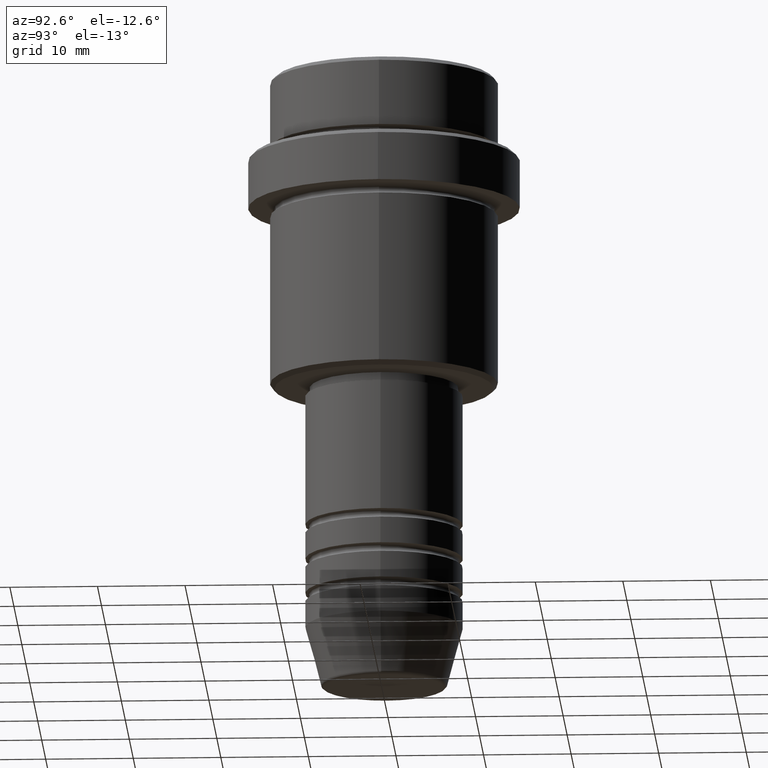
[diagram: clean part render]
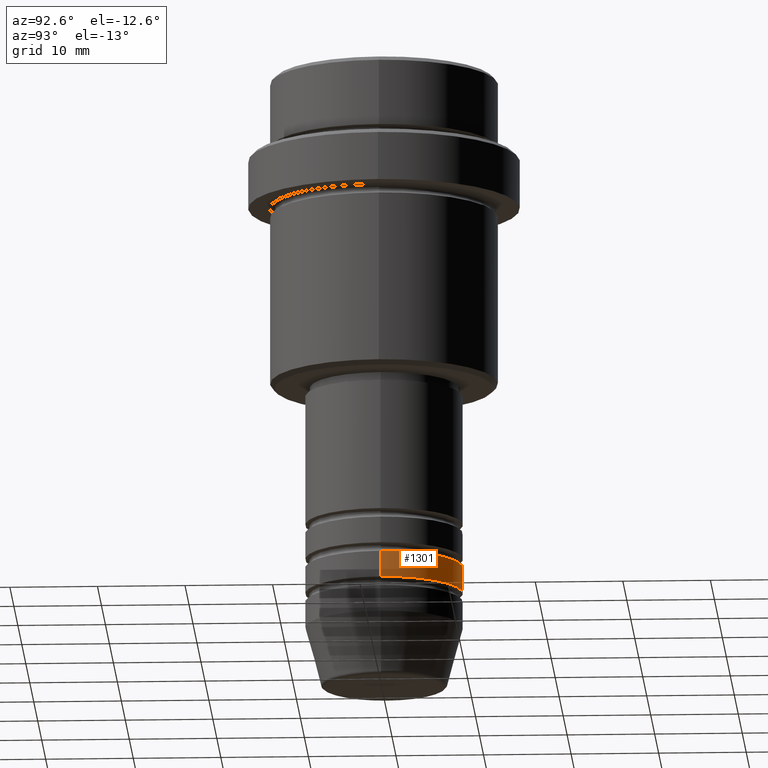
[diagram: same view with one face highlighted and labeled with its STEP entity id]
A machine part, auxiliary view. The second image highlights one B-rep face of the part: STEP entity #1301.
In plain terms, the highlighted cylindrical surface (partial cylindrical patch) has radius 9 mm, axis along (-0, -0, 1).
Its self-contained STEP definition (entity closure, byte-faithful):
#38 = VERTEX_POINT ( 'NONE', #1353 ) ;
#43 = ORIENTED_EDGE ( 'NONE', *, *, #1189, .T. ) ;
#83 = CIRCLE ( 'NONE', #654, 9.000000000000000000 ) ;
#115 = DIRECTION ( 'NONE',  ( 1.000000000000000000, 0.000000000000000000, 0.000000000000000000 ) ) ;
#124 = CYLINDRICAL_SURFACE ( 'NONE', #683, 9.000000000000000000 ) ;
#143 = ORIENTED_EDGE ( 'NONE', *, *, #518, .F. ) ;
#199 = DIRECTION ( 'NONE',  ( -0.000000000000000000, -0.000000000000000000, 1.000000000000000000 ) ) ;
#228 = EDGE_LOOP ( 'NONE', ( #727, #43, #143, #1242 ) ) ;
#242 = VECTOR ( 'NONE', #199, 1000.000000000000000 ) ;
#312 = CARTESIAN_POINT ( 'NONE',  ( 9.000000000000000000, 0.000000000000000000, -59.99999999999988631 ) ) ;
#320 = DIRECTION ( 'NONE',  ( -0.000000000000000000, -0.000000000000000000, 1.000000000000000000 ) ) ;
#327 = LINE ( 'NONE', #422, #472 ) ;
#334 = DIRECTION ( 'NONE',  ( -0.000000000000000000, -0.000000000000000000, 1.000000000000000000 ) ) ;
#341 = CARTESIAN_POINT ( 'NONE',  ( -9.000000000000000000, 1.102182119232617714E-15, -59.99999999999988631 ) ) ;
#407 = DIRECTION ( 'NONE',  ( 1.000000000000000000, 0.000000000000000000, 0.000000000000000000 ) ) ;
#408 = CIRCLE ( 'NONE', #836, 9.000000000000000000 ) ;
#422 = CARTESIAN_POINT ( 'NONE',  ( -9.000000000000000000, 1.102182119232617714E-15, 0.000000000000000000 ) ) ;
#472 = VECTOR ( 'NONE', #320, 1000.000000000000000 ) ;
#518 = EDGE_CURVE ( 'NONE', #38, #708, #83, .T. ) ;
#643 = VERTEX_POINT ( 'NONE', #312 ) ;
#651 = VERTEX_POINT ( 'NONE', #341 ) ;
#654 = AXIS2_PLACEMENT_3D ( 'NONE', #743, #1253, #407 ) ;
#658 = FACE_OUTER_BOUND ( 'NONE', #228, .T. ) ;
#683 = AXIS2_PLACEMENT_3D ( 'NONE', #777, #334, #115 ) ;
#708 = VERTEX_POINT ( 'NONE', #1302 ) ;
#727 = ORIENTED_EDGE ( 'NONE', *, *, #738, .T. ) ;
#738 = EDGE_CURVE ( 'NONE', #643, #651, #408, .T. ) ;
#743 = CARTESIAN_POINT ( 'NONE',  ( 0.000000000000000000, 0.000000000000000000, -56.99999999999988631 ) ) ;
#754 = LINE ( 'NONE', #1180, #242 ) ;
#776 = EDGE_CURVE ( 'NONE', #643, #38, #754, .T. ) ;
#777 = CARTESIAN_POINT ( 'NONE',  ( 0.000000000000000000, 0.000000000000000000, 0.000000000000000000 ) ) ;
#836 = AXIS2_PLACEMENT_3D ( 'NONE', #1079, #1076, #856 ) ;
#856 = DIRECTION ( 'NONE',  ( 1.000000000000000000, 0.000000000000000000, 0.000000000000000000 ) ) ;
#1076 = DIRECTION ( 'NONE',  ( -0.000000000000000000, -0.000000000000000000, 1.000000000000000000 ) ) ;
#1079 = CARTESIAN_POINT ( 'NONE',  ( 0.000000000000000000, 0.000000000000000000, -59.99999999999988631 ) ) ;
#1180 = CARTESIAN_POINT ( 'NONE',  ( 9.000000000000000000, 0.000000000000000000, 0.000000000000000000 ) ) ;
#1189 = EDGE_CURVE ( 'NONE', #651, #708, #327, .T. ) ;
#1242 = ORIENTED_EDGE ( 'NONE', *, *, #776, .F. ) ;
#1253 = DIRECTION ( 'NONE',  ( -0.000000000000000000, -0.000000000000000000, 1.000000000000000000 ) ) ;
#1301 = ADVANCED_FACE ( 'NONE', ( #658 ), #124, .T. ) ;
#1302 = CARTESIAN_POINT ( 'NONE',  ( -9.000000000000000000, 1.102182119232617714E-15, -56.99999999999988631 ) ) ;
#1353 = CARTESIAN_POINT ( 'NONE',  ( 9.000000000000000000, 0.000000000000000000, -56.99999999999988631 ) ) ;